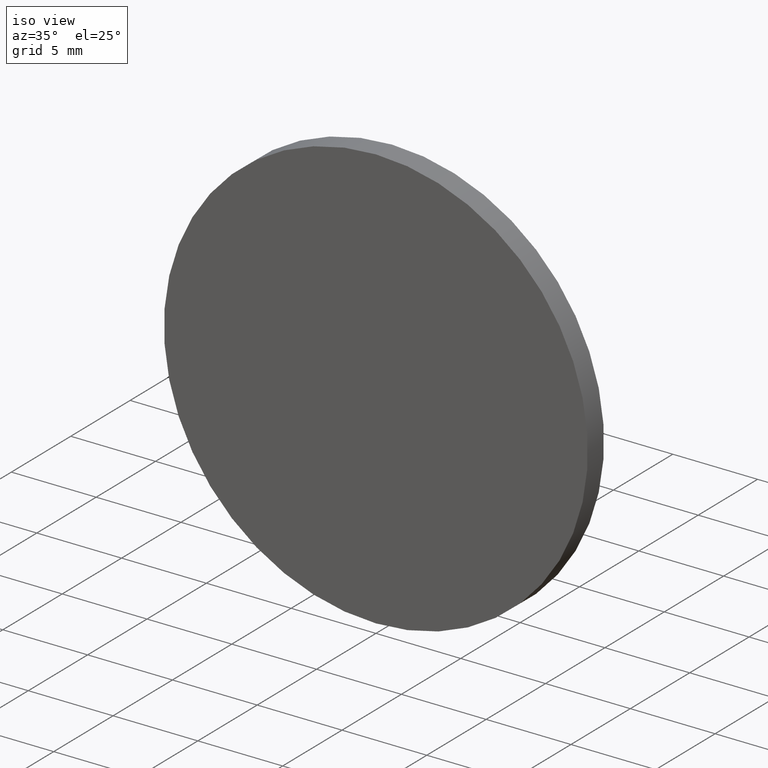
[diagram: clean part render]
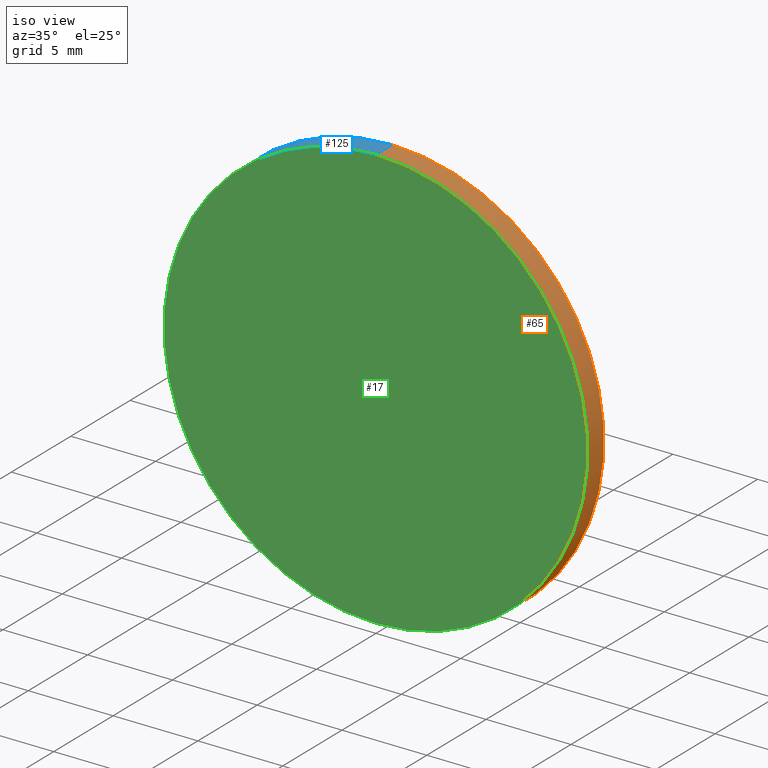
[diagram: same view with three faces highlighted in distinct colors, each labeled with its STEP entity id]
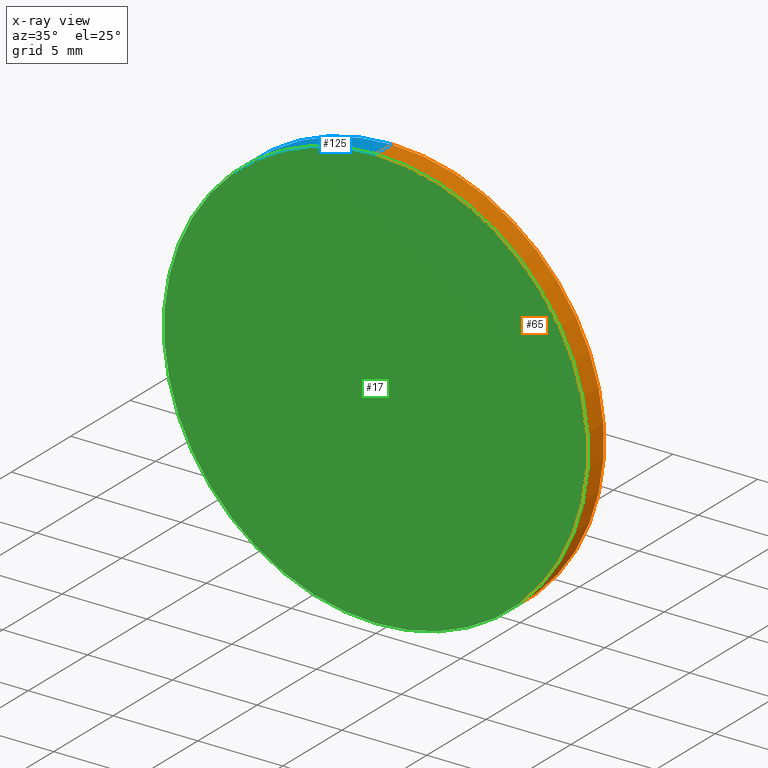
[diagram: x-ray of the same camera — body ghosted, the three highlighted faces saturated]
A machine part, iso view with three faces highlighted in distinct colors.
The next image is the same camera in x-ray (body ghosted, the three faces saturated) — at least one of them is partly hidden behind the body in this view.
Their STEP definitions:

[orange] entity #65 — the highlighted cylindrical surface (partial cylindrical patch) has radius 12.5 mm, axis along (-0, -1, -0).
#6 = AXIS2_PLACEMENT_3D ( 'NONE', #132, #61, #135 ) ;
#12 = LINE ( 'NONE', #37, #51 ) ;
#13 = ORIENTED_EDGE ( 'NONE', *, *, #111, .F. ) ;
#20 = DIRECTION ( 'NONE',  ( 0.0000000000000000000, 0.0000000000000000000, -1.000000000000000000 ) ) ;
#21 = EDGE_CURVE ( 'NONE', #60, #90, #22, .T. ) ;
#22 = LINE ( 'NONE', #78, #54 ) ;
#28 = CARTESIAN_POINT ( 'NONE',  ( 0.0000000000000000000, 1.360000000000000100, -12.50000000000000000 ) ) ;
#29 = DIRECTION ( 'NONE',  ( 0.0000000000000000000, 1.000000000000000000, 0.0000000000000000000 ) ) ;
#30 = VERTEX_POINT ( 'NONE', #103 ) ;
#37 = CARTESIAN_POINT ( 'NONE',  ( 1.530808498934191500E-015, 1.360000000000000100, 12.50000000000000000 ) ) ;
#38 = AXIS2_PLACEMENT_3D ( 'NONE', #112, #29, #101 ) ;
#43 = FACE_OUTER_BOUND ( 'NONE', #84, .T. ) ;
#51 = VECTOR ( 'NONE', #134, 1000.000000000000000 ) ;
#54 = VECTOR ( 'NONE', #108, 1000.000000000000000 ) ;
#60 = VERTEX_POINT ( 'NONE', #28 ) ;
#61 = DIRECTION ( 'NONE',  ( 0.0000000000000000000, 1.000000000000000000, 0.0000000000000000000 ) ) ;
#62 = AXIS2_PLACEMENT_3D ( 'NONE', #73, #87, #20 ) ;
#64 = CIRCLE ( 'NONE', #38, 12.50000000000000000 ) ;
#65 = ADVANCED_FACE ( 'NONE', ( #43 ), #88, .T. ) ;
#68 = EDGE_CURVE ( 'NONE', #126, #90, #64, .T. ) ;
#73 = CARTESIAN_POINT ( 'NONE',  ( 0.0000000000000000000, 1.360000000000000100, 0.0000000000000000000 ) ) ;
#78 = CARTESIAN_POINT ( 'NONE',  ( 0.0000000000000000000, 1.360000000000000100, -12.50000000000000000 ) ) ;
#84 = EDGE_LOOP ( 'NONE', ( #13, #124, #113, #120 ) ) ;
#85 = CARTESIAN_POINT ( 'NONE',  ( 0.0000000000000000000, 0.0000000000000000000, -12.50000000000000000 ) ) ;
#86 = EDGE_CURVE ( 'NONE', #30, #126, #12, .T. ) ;
#87 = DIRECTION ( 'NONE',  ( -0.0000000000000000000, -1.000000000000000000, -0.0000000000000000000 ) ) ;
#88 = CYLINDRICAL_SURFACE ( 'NONE', #62, 12.50000000000000000 ) ;
#90 = VERTEX_POINT ( 'NONE', #85 ) ;
#91 = CIRCLE ( 'NONE', #6, 12.50000000000000000 ) ;
#101 = DIRECTION ( 'NONE',  ( 0.0000000000000000000, 0.0000000000000000000, 1.000000000000000000 ) ) ;
#103 = CARTESIAN_POINT ( 'NONE',  ( 1.530808498934191500E-015, 1.360000000000000100, 12.50000000000000000 ) ) ;
#108 = DIRECTION ( 'NONE',  ( -0.0000000000000000000, -1.000000000000000000, -0.0000000000000000000 ) ) ;
#111 = EDGE_CURVE ( 'NONE', #30, #60, #91, .T. ) ;
#112 = CARTESIAN_POINT ( 'NONE',  ( 0.0000000000000000000, 0.0000000000000000000, 0.0000000000000000000 ) ) ;
#113 = ORIENTED_EDGE ( 'NONE', *, *, #68, .T. ) ;
#120 = ORIENTED_EDGE ( 'NONE', *, *, #21, .F. ) ;
#122 = CARTESIAN_POINT ( 'NONE',  ( 1.530808498934191500E-015, 0.0000000000000000000, 12.50000000000000000 ) ) ;
#124 = ORIENTED_EDGE ( 'NONE', *, *, #86, .T. ) ;
#126 = VERTEX_POINT ( 'NONE', #122 ) ;
#132 = CARTESIAN_POINT ( 'NONE',  ( 0.0000000000000000000, 1.360000000000000100, 0.0000000000000000000 ) ) ;
#134 = DIRECTION ( 'NONE',  ( -0.0000000000000000000, -1.000000000000000000, -0.0000000000000000000 ) ) ;
#135 = DIRECTION ( 'NONE',  ( 0.0000000000000000000, 0.0000000000000000000, 1.000000000000000000 ) ) ;

[blue] entity #125 — the highlighted cylindrical surface (partial cylindrical patch) has radius 12.5 mm, axis along (-0, -1, -0).
#5 = CARTESIAN_POINT ( 'NONE',  ( 0.0000000000000000000, 1.360000000000000100, 0.0000000000000000000 ) ) ;
#8 = FACE_OUTER_BOUND ( 'NONE', #32, .T. ) ;
#12 = LINE ( 'NONE', #37, #51 ) ;
#15 = ORIENTED_EDGE ( 'NONE', *, *, #86, .F. ) ;
#19 = DIRECTION ( 'NONE',  ( -0.0000000000000000000, -1.000000000000000000, -0.0000000000000000000 ) ) ;
#21 = EDGE_CURVE ( 'NONE', #60, #90, #22, .T. ) ;
#22 = LINE ( 'NONE', #78, #54 ) ;
#24 = CIRCLE ( 'NONE', #40, 12.50000000000000000 ) ;
#28 = CARTESIAN_POINT ( 'NONE',  ( 0.0000000000000000000, 1.360000000000000100, -12.50000000000000000 ) ) ;
#30 = VERTEX_POINT ( 'NONE', #103 ) ;
#32 = EDGE_LOOP ( 'NONE', ( #15, #102, #41, #48 ) ) ;
#37 = CARTESIAN_POINT ( 'NONE',  ( 1.530808498934191500E-015, 1.360000000000000100, 12.50000000000000000 ) ) ;
#40 = AXIS2_PLACEMENT_3D ( 'NONE', #47, #42, #129 ) ;
#41 = ORIENTED_EDGE ( 'NONE', *, *, #21, .T. ) ;
#42 = DIRECTION ( 'NONE',  ( 0.0000000000000000000, 1.000000000000000000, 0.0000000000000000000 ) ) ;
#47 = CARTESIAN_POINT ( 'NONE',  ( 0.0000000000000000000, 1.360000000000000100, 0.0000000000000000000 ) ) ;
#48 = ORIENTED_EDGE ( 'NONE', *, *, #133, .T. ) ;
#51 = VECTOR ( 'NONE', #134, 1000.000000000000000 ) ;
#54 = VECTOR ( 'NONE', #108, 1000.000000000000000 ) ;
#60 = VERTEX_POINT ( 'NONE', #28 ) ;
#70 = DIRECTION ( 'NONE',  ( 0.0000000000000000000, 0.0000000000000000000, 1.000000000000000000 ) ) ;
#74 = DIRECTION ( 'NONE',  ( 0.0000000000000000000, 0.0000000000000000000, -1.000000000000000000 ) ) ;
#78 = CARTESIAN_POINT ( 'NONE',  ( 0.0000000000000000000, 1.360000000000000100, -12.50000000000000000 ) ) ;
#83 = CARTESIAN_POINT ( 'NONE',  ( 0.0000000000000000000, 0.0000000000000000000, 0.0000000000000000000 ) ) ;
#85 = CARTESIAN_POINT ( 'NONE',  ( 0.0000000000000000000, 0.0000000000000000000, -12.50000000000000000 ) ) ;
#86 = EDGE_CURVE ( 'NONE', #30, #126, #12, .T. ) ;
#90 = VERTEX_POINT ( 'NONE', #85 ) ;
#102 = ORIENTED_EDGE ( 'NONE', *, *, #118, .F. ) ;
#103 = CARTESIAN_POINT ( 'NONE',  ( 1.530808498934191500E-015, 1.360000000000000100, 12.50000000000000000 ) ) ;
#105 = AXIS2_PLACEMENT_3D ( 'NONE', #83, #139, #70 ) ;
#108 = DIRECTION ( 'NONE',  ( -0.0000000000000000000, -1.000000000000000000, -0.0000000000000000000 ) ) ;
#115 = CIRCLE ( 'NONE', #105, 12.50000000000000000 ) ;
#117 = AXIS2_PLACEMENT_3D ( 'NONE', #5, #19, #74 ) ;
#118 = EDGE_CURVE ( 'NONE', #60, #30, #24, .T. ) ;
#122 = CARTESIAN_POINT ( 'NONE',  ( 1.530808498934191500E-015, 0.0000000000000000000, 12.50000000000000000 ) ) ;
#125 = ADVANCED_FACE ( 'NONE', ( #8 ), #140, .T. ) ;
#126 = VERTEX_POINT ( 'NONE', #122 ) ;
#129 = DIRECTION ( 'NONE',  ( 0.0000000000000000000, 0.0000000000000000000, 1.000000000000000000 ) ) ;
#133 = EDGE_CURVE ( 'NONE', #90, #126, #115, .T. ) ;
#134 = DIRECTION ( 'NONE',  ( -0.0000000000000000000, -1.000000000000000000, -0.0000000000000000000 ) ) ;
#139 = DIRECTION ( 'NONE',  ( 0.0000000000000000000, 1.000000000000000000, 0.0000000000000000000 ) ) ;
#140 = CYLINDRICAL_SURFACE ( 'NONE', #117, 12.50000000000000000 ) ;

[green] entity #17 — the highlighted planar face has unit normal (0, 1, 0).
#9 = AXIS2_PLACEMENT_3D ( 'NONE', #92, #66, #116 ) ;
#11 = ORIENTED_EDGE ( 'NONE', *, *, #133, .F. ) ;
#17 = ADVANCED_FACE ( 'NONE', ( #53 ), #67, .F. ) ;
#29 = DIRECTION ( 'NONE',  ( 0.0000000000000000000, 1.000000000000000000, 0.0000000000000000000 ) ) ;
#31 = ORIENTED_EDGE ( 'NONE', *, *, #68, .F. ) ;
#38 = AXIS2_PLACEMENT_3D ( 'NONE', #112, #29, #101 ) ;
#53 = FACE_OUTER_BOUND ( 'NONE', #128, .T. ) ;
#64 = CIRCLE ( 'NONE', #38, 12.50000000000000000 ) ;
#66 = DIRECTION ( 'NONE',  ( 0.0000000000000000000, 1.000000000000000000, 0.0000000000000000000 ) ) ;
#67 = PLANE ( 'NONE',  #9 ) ;
#68 = EDGE_CURVE ( 'NONE', #126, #90, #64, .T. ) ;
#70 = DIRECTION ( 'NONE',  ( 0.0000000000000000000, 0.0000000000000000000, 1.000000000000000000 ) ) ;
#83 = CARTESIAN_POINT ( 'NONE',  ( 0.0000000000000000000, 0.0000000000000000000, 0.0000000000000000000 ) ) ;
#85 = CARTESIAN_POINT ( 'NONE',  ( 0.0000000000000000000, 0.0000000000000000000, -12.50000000000000000 ) ) ;
#90 = VERTEX_POINT ( 'NONE', #85 ) ;
#92 = CARTESIAN_POINT ( 'NONE',  ( 0.0000000000000000000, 0.0000000000000000000, 0.0000000000000000000 ) ) ;
#101 = DIRECTION ( 'NONE',  ( 0.0000000000000000000, 0.0000000000000000000, 1.000000000000000000 ) ) ;
#105 = AXIS2_PLACEMENT_3D ( 'NONE', #83, #139, #70 ) ;
#112 = CARTESIAN_POINT ( 'NONE',  ( 0.0000000000000000000, 0.0000000000000000000, 0.0000000000000000000 ) ) ;
#115 = CIRCLE ( 'NONE', #105, 12.50000000000000000 ) ;
#116 = DIRECTION ( 'NONE',  ( 0.0000000000000000000, -0.0000000000000000000, 1.000000000000000000 ) ) ;
#122 = CARTESIAN_POINT ( 'NONE',  ( 1.530808498934191500E-015, 0.0000000000000000000, 12.50000000000000000 ) ) ;
#126 = VERTEX_POINT ( 'NONE', #122 ) ;
#128 = EDGE_LOOP ( 'NONE', ( #11, #31 ) ) ;
#133 = EDGE_CURVE ( 'NONE', #90, #126, #115, .T. ) ;
#139 = DIRECTION ( 'NONE',  ( 0.0000000000000000000, 1.000000000000000000, 0.0000000000000000000 ) ) ;